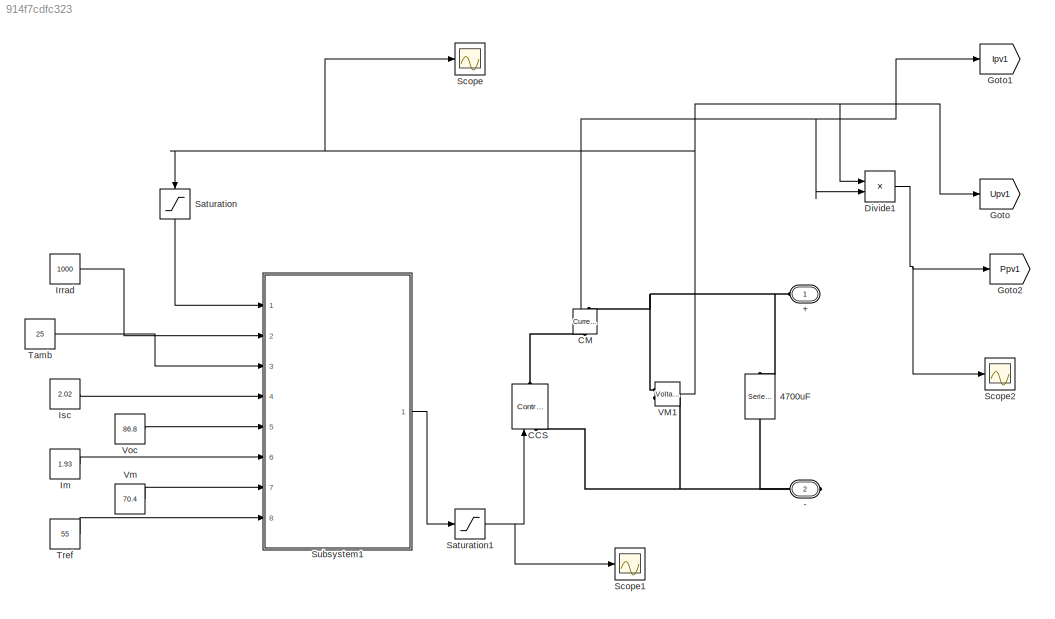
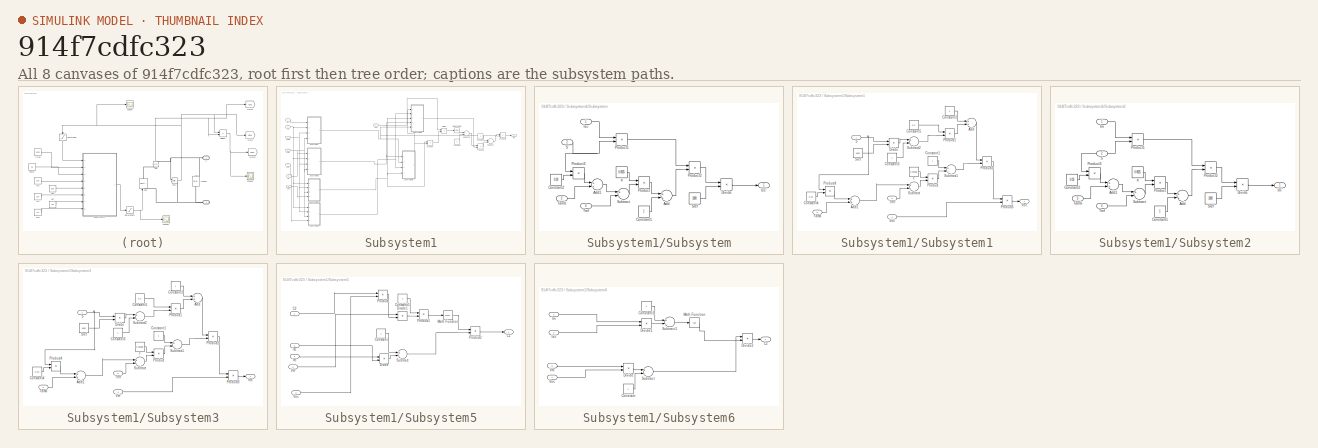
[diagram: thumbnail index - all 8 canvases of the model, root first then tree order]
MODEL slx_914f7cdfc323
KIND model
CONFIG AbsTol = auto
CONFIG FixedStep = auto
CONFIG MaxStep = auto
CONFIG MinStep = auto
CONFIG RelTol = 1e-3
CONFIG SampleTimeConstraint = Unconstrained
CONFIG Solver = ode45
CONFIG SolverMode = Auto
CONFIG SolverName = ode45
CONFIG StartTime = 0.0
CONFIG StopTime = 10.0
BLOCK [PMIOPort] +
  Port = 1
  Side = Left
  Tag = PMCPort
BLOCK [PMIOPort] -
  Port = 2
  Side = Right
  Tag = PMCPort
BLOCK [Reference] 4700uF  REF=powerlib/Elements/Series RLC Branch
  AttributesFormatString = \n
  BranchType = C
  Capacitance = 4700e-6
  Inductance = 5e-03
  InitialCurrent = 0
  InitialVoltage = 0
  LConnTagsString = __new0
  Measurements = None
  Ports = [0, 0, 0, 0, 0, 1, 1]
  RConnTagsString = __new0
  Resistance = 1
  SetiL0 = off
  Setx0 = off
  SourceBlock = powerlib/Elements/Series RLC Branch
  SourceType = Series RLC Branch
BLOCK [Reference] CCS  REF=powerlib/Electrical
Sources/Controlled Current Source
  Amplitude = 0
  Frequency = 0
  Initialize = on
  Measurements = None
  Phase = 0
  Ports = [1, 0, 0, 0, 0, 1, 1]
  SourceBlock = powerlib/Electrical\nSources/Controlled Current Source
  SourceType = Controlled Current Source
  Source_Type = AC
BLOCK [Reference] CM  REF=powerlib/Measurements/Current Measurement
  OutputType = Complex
  PSBequivalent = 0
  PhasorSimulation = off
  Ports = [0, 1, 0, 0, 0, 1, 1]
  SourceBlock = powerlib/Measurements/Current Measurement
  SourceType = Current Measurement
BLOCK [Product] Divide1
  InputSameDT = off
  Inputs = **
  OutDataTypeStr = Inherit: Inherit via internal rule
  Ports = [2, 1]
  RndMeth = Floor
  SaturateOnIntegerOverflow = off
BLOCK [Goto] Goto
  GotoTag = Upv1
  TagVisibility = global
BLOCK [Goto] Goto1
  GotoTag = Ipv1
  TagVisibility = global
BLOCK [Goto] Goto2
  GotoTag = Ppv1
  TagVisibility = global
BLOCK [Constant] Im
  Value = 1.93
BLOCK [Constant] Irrad 
  Value = 1000
BLOCK [Constant] Isc
  Value = 2.02
BLOCK [Saturate] Saturation
  InputPortMap = u0
  LowerLimit = 0
  Ports = [1, 1]
  UpperLimit = 100
BLOCK [Saturate] Saturation1
  InputPortMap = u0
  LowerLimit = 0
  Ports = [1, 1]
  UpperLimit = 4
BLOCK [Scope] Scope
  Floating = off
  NumInputPorts = 1
  Ports = [1]
BLOCK [Scope] Scope1
  Floating = off
  NumInputPorts = 1
  Ports = [1]
  SaveName = ScopeData1
BLOCK [Scope] Scope2
  Floating = off
  NumInputPorts = 1
  Ports = [1]
  SaveName = ScopeData2
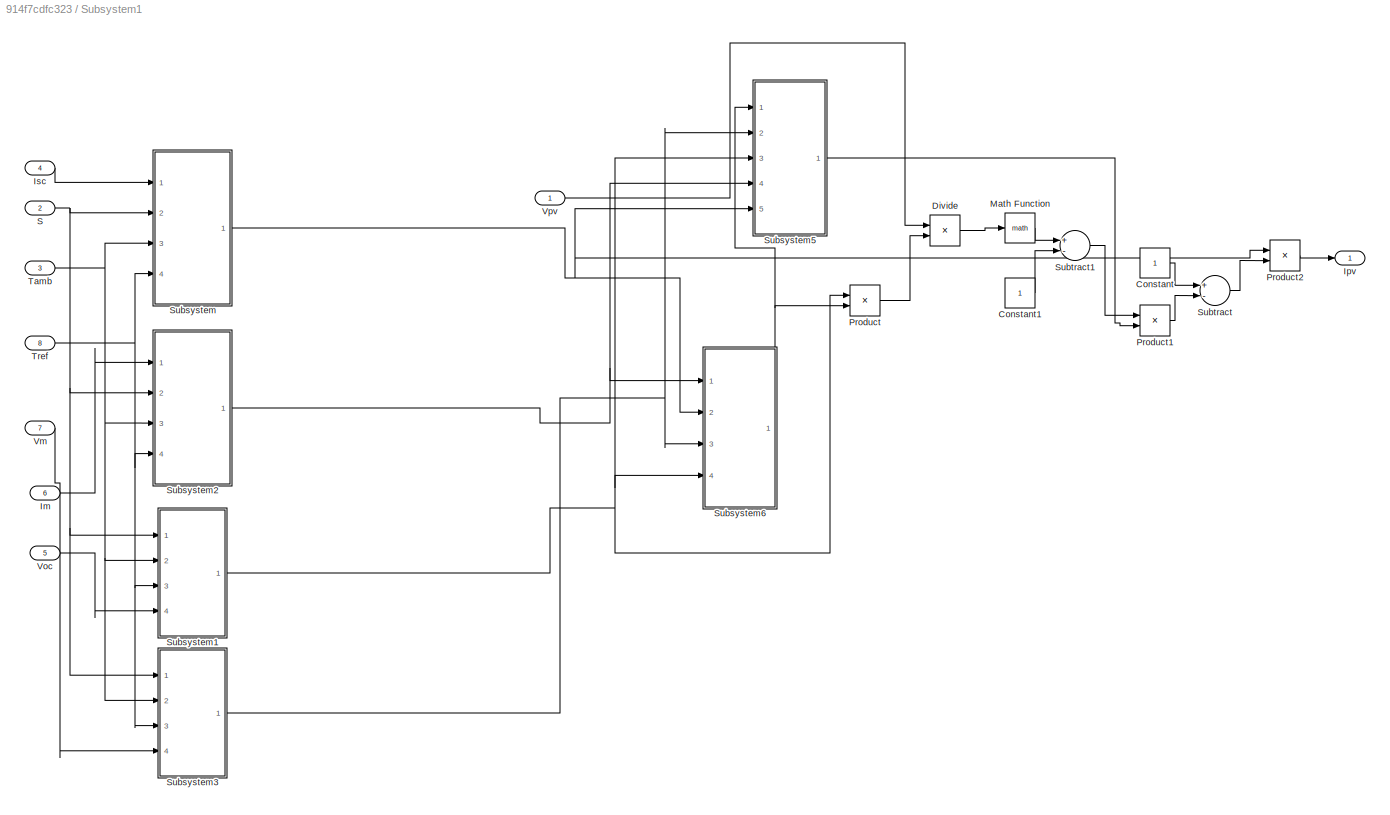
BLOCK [SubSystem] Subsystem1
  Ports = [8, 1]
  RequestExecContextInheritance = off
BLOCK [Constant] Subsystem1/Constant
BLOCK [Constant] Subsystem1/Constant1
BLOCK [Product] Subsystem1/Divide
  InputSameDT = off
  Inputs = */
  OutDataTypeStr = Inherit: Inherit via internal rule
  Ports = [2, 1]
  RndMeth = Floor
  SaturateOnIntegerOverflow = off
BLOCK [Inport] Subsystem1/Im
  IconDisplay = Port number
  Port = 6
BLOCK [Outport] Subsystem1/Ipv
  IconDisplay = Port number
BLOCK [Inport] Subsystem1/Isc
  IconDisplay = Port number
  Port = 4
BLOCK [Math] Subsystem1/Math Function
  Ports = [1, 1]
BLOCK [Product] Subsystem1/Product
  InputSameDT = off
  OutDataTypeStr = Inherit: Inherit via internal rule
  Ports = [2, 1]
  SaturateOnIntegerOverflow = off
BLOCK [Product] Subsystem1/Product1
  InputSameDT = off
  OutDataTypeStr = Inherit: Inherit via internal rule
  Ports = [2, 1]
  SaturateOnIntegerOverflow = off
BLOCK [Product] Subsystem1/Product2
  InputSameDT = off
  OutDataTypeStr = Inherit: Inherit via internal rule
  Ports = [2, 1]
  SaturateOnIntegerOverflow = off
BLOCK [Inport] Subsystem1/S
  IconDisplay = Port number
  Port = 2
BLOCK [SubSystem] Subsystem1/Subsystem
  Ports = [4, 1]
  RequestExecContextInheritance = off
BLOCK [Sum] Subsystem1/Subsystem/Add
  InputSameDT = off
  OutDataTypeStr = Inherit: Inherit via internal rule
  Ports = [2, 1]
  SaturateOnIntegerOverflow = off
BLOCK [Sum] Subsystem1/Subsystem/Add1
  InputSameDT = off
  OutDataTypeStr = Inherit: Inherit via internal rule
  Ports = [2, 1]
  SaturateOnIntegerOverflow = off
BLOCK [Constant] Subsystem1/Subsystem/Constant1
BLOCK [Constant] Subsystem1/Subsystem/Constant2
  Value = 0.03
BLOCK [Product] Subsystem1/Subsystem/Divide
  InputSameDT = off
  Inputs = */
  OutDataTypeStr = Inherit: Inherit via internal rule
  Ports = [2, 1]
  RndMeth = Floor
  SaturateOnIntegerOverflow = off
BLOCK [Inport] Subsystem1/Subsystem/Isc
  IconDisplay = Port number
BLOCK [Outport] Subsystem1/Subsystem/Isc'
  IconDisplay = Port number
BLOCK [Product] Subsystem1/Subsystem/Product
  InputSameDT = off
  OutDataTypeStr = Inherit: Inherit via internal rule
  Ports = [2, 1]
  SaturateOnIntegerOverflow = off
BLOCK [Product] Subsystem1/Subsystem/Product1
  InputSameDT = off
  OutDataTypeStr = Inherit: Inherit via internal rule
  Ports = [2, 1]
  SaturateOnIntegerOverflow = off
BLOCK [Product] Subsystem1/Subsystem/Product2
  InputSameDT = off
  OutDataTypeStr = Inherit: Inherit via internal rule
  Ports = [2, 1]
  SaturateOnIntegerOverflow = off
BLOCK [Product] Subsystem1/Subsystem/Product3
  InputSameDT = off
  OutDataTypeStr = Inherit: Inherit via internal rule
  Ports = [2, 1]
  SaturateOnIntegerOverflow = off
BLOCK [Inport] Subsystem1/Subsystem/S
  IconDisplay = Port number
  Port = 2
BLOCK [Constant] Subsystem1/Subsystem/Sref
  Value = 1000
BLOCK [Sum] Subsystem1/Subsystem/Subtract
  InputSameDT = off
  Inputs = +-
  OutDataTypeStr = Inherit: Inherit via internal rule
  Ports = [2, 1]
  SaturateOnIntegerOverflow = off
BLOCK [Inport] Subsystem1/Subsystem/Tamb
  IconDisplay = Port number
  Port = 3
BLOCK [Inport] Subsystem1/Subsystem/Tref
  IconDisplay = Port number
  Port = 4
BLOCK [Constant] Subsystem1/Subsystem/a
  Value = 0.0025
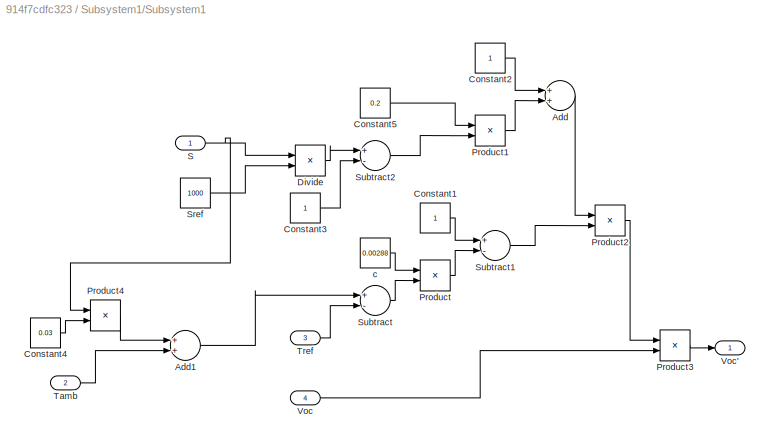
BLOCK [SubSystem] Subsystem1/Subsystem1
  Ports = [4, 1]
  RequestExecContextInheritance = off
BLOCK [Sum] Subsystem1/Subsystem1/Add
  InputSameDT = off
  OutDataTypeStr = Inherit: Inherit via internal rule
  Ports = [2, 1]
  SaturateOnIntegerOverflow = off
BLOCK [Sum] Subsystem1/Subsystem1/Add1
  InputSameDT = off
  OutDataTypeStr = Inherit: Inherit via internal rule
  Ports = [2, 1]
  SaturateOnIntegerOverflow = off
BLOCK [Constant] Subsystem1/Subsystem1/Constant1
BLOCK [Constant] Subsystem1/Subsystem1/Constant2
BLOCK [Constant] Subsystem1/Subsystem1/Constant3
BLOCK [Constant] Subsystem1/Subsystem1/Constant4
  Value = 0.03
BLOCK [Constant] Subsystem1/Subsystem1/Constant5
  Value = 0.2
BLOCK [Product] Subsystem1/Subsystem1/Divide
  InputSameDT = off
  Inputs = */
  OutDataTypeStr = Inherit: Inherit via internal rule
  Ports = [2, 1]
  RndMeth = Floor
  SaturateOnIntegerOverflow = off
BLOCK [Product] Subsystem1/Subsystem1/Product
  InputSameDT = off
  OutDataTypeStr = Inherit: Inherit via internal rule
  Ports = [2, 1]
  SaturateOnIntegerOverflow = off
BLOCK [Product] Subsystem1/Subsystem1/Product1
  InputSameDT = off
  OutDataTypeStr = Inherit: Inherit via internal rule
  Ports = [2, 1]
  SaturateOnIntegerOverflow = off
BLOCK [Product] Subsystem1/Subsystem1/Product2
  InputSameDT = off
  OutDataTypeStr = Inherit: Inherit via internal rule
  Ports = [2, 1]
  SaturateOnIntegerOverflow = off
BLOCK [Product] Subsystem1/Subsystem1/Product3
  InputSameDT = off
  OutDataTypeStr = Inherit: Inherit via internal rule
  Ports = [2, 1]
  SaturateOnIntegerOverflow = off
BLOCK [Product] Subsystem1/Subsystem1/Product4
  InputSameDT = off
  OutDataTypeStr = Inherit: Inherit via internal rule
  Ports = [2, 1]
  SaturateOnIntegerOverflow = off
BLOCK [Inport] Subsystem1/Subsystem1/S
  IconDisplay = Port number
BLOCK [Constant] Subsystem1/Subsystem1/Sref
  Value = 1000
BLOCK [Sum] Subsystem1/Subsystem1/Subtract
  InputSameDT = off
  Inputs = +-
  OutDataTypeStr = Inherit: Inherit via internal rule
  Ports = [2, 1]
  SaturateOnIntegerOverflow = off
BLOCK [Sum] Subsystem1/Subsystem1/Subtract1
  InputSameDT = off
  Inputs = +-
  OutDataTypeStr = Inherit: Inherit via internal rule
  Ports = [2, 1]
  SaturateOnIntegerOverflow = off
BLOCK [Sum] Subsystem1/Subsystem1/Subtract2
  InputSameDT = off
  Inputs = +-
  OutDataTypeStr = Inherit: Inherit via internal rule
  Ports = [2, 1]
  SaturateOnIntegerOverflow = off
BLOCK [Inport] Subsystem1/Subsystem1/Tamb
  IconDisplay = Port number
  Port = 2
BLOCK [Inport] Subsystem1/Subsystem1/Tref
  IconDisplay = Port number
  Port = 3
BLOCK [Inport] Subsystem1/Subsystem1/Voc
  IconDisplay = Port number
  Port = 4
BLOCK [Outport] Subsystem1/Subsystem1/Voc'
  IconDisplay = Port number
BLOCK [Constant] Subsystem1/Subsystem1/c
  Value = 0.00288
BLOCK [SubSystem] Subsystem1/Subsystem2
  Ports = [4, 1]
  RequestExecContextInheritance = off
BLOCK [Sum] Subsystem1/Subsystem2/Add
  InputSameDT = off
  OutDataTypeStr = Inherit: Inherit via internal rule
  Ports = [2, 1]
  SaturateOnIntegerOverflow = off
BLOCK [Sum] Subsystem1/Subsystem2/Add1
  InputSameDT = off
  OutDataTypeStr = Inherit: Inherit via internal rule
  Ports = [2, 1]
  SaturateOnIntegerOverflow = off
BLOCK [Constant] Subsystem1/Subsystem2/Constant1
BLOCK [Constant] Subsystem1/Subsystem2/Constant2
  Value = 0.03
BLOCK [Product] Subsystem1/Subsystem2/Divide
  InputSameDT = off
  Inputs = */
  OutDataTypeStr = Inherit: Inherit via internal rule
  Ports = [2, 1]
  RndMeth = Floor
  SaturateOnIntegerOverflow = off
BLOCK [Inport] Subsystem1/Subsystem2/Im
  IconDisplay = Port number
BLOCK [Outport] Subsystem1/Subsystem2/Im'
  IconDisplay = Port number
BLOCK [Product] Subsystem1/Subsystem2/Product
  InputSameDT = off
  OutDataTypeStr = Inherit: Inherit via internal rule
  Ports = [2, 1]
  SaturateOnIntegerOverflow = off
BLOCK [Product] Subsystem1/Subsystem2/Product1
  InputSameDT = off
  OutDataTypeStr = Inherit: Inherit via internal rule
  Ports = [2, 1]
  SaturateOnIntegerOverflow = off
BLOCK [Product] Subsystem1/Subsystem2/Product2
  InputSameDT = off
  OutDataTypeStr = Inherit: Inherit via internal rule
  Ports = [2, 1]
  SaturateOnIntegerOverflow = off
BLOCK [Product] Subsystem1/Subsystem2/Product3
  InputSameDT = off
  OutDataTypeStr = Inherit: Inherit via internal rule
  Ports = [2, 1]
  SaturateOnIntegerOverflow = off
BLOCK [Inport] Subsystem1/Subsystem2/S
  IconDisplay = Port number
  Port = 2
BLOCK [Constant] Subsystem1/Subsystem2/Sref
  Value = 1000
BLOCK [Sum] Subsystem1/Subsystem2/Subtract
  InputSameDT = off
  Inputs = +-
  OutDataTypeStr = Inherit: Inherit via internal rule
  Ports = [2, 1]
  SaturateOnIntegerOverflow = off
BLOCK [Inport] Subsystem1/Subsystem2/Tamb
  IconDisplay = Port number
  Port = 3
BLOCK [Inport] Subsystem1/Subsystem2/Tref
  IconDisplay = Port number
  Port = 4
BLOCK [Constant] Subsystem1/Subsystem2/a
  Value = 0.0025
BLOCK [SubSystem] Subsystem1/Subsystem3
  Ports = [4, 1]
  RequestExecContextInheritance = off
BLOCK [Sum] Subsystem1/Subsystem3/Add
  InputSameDT = off
  OutDataTypeStr = Inherit: Inherit via internal rule
  Ports = [2, 1]
  SaturateOnIntegerOverflow = off
BLOCK [Sum] Subsystem1/Subsystem3/Add1
  InputSameDT = off
  OutDataTypeStr = Inherit: Inherit via internal rule
  Ports = [2, 1]
  SaturateOnIntegerOverflow = off
BLOCK [Constant] Subsystem1/Subsystem3/Constant1
BLOCK [Constant] Subsystem1/Subsystem3/Constant2
BLOCK [Constant] Subsystem1/Subsystem3/Constant3
BLOCK [Constant] Subsystem1/Subsystem3/Constant4
  Value = 0.03
BLOCK [Constant] Subsystem1/Subsystem3/Constant5
  Value = 0.2
BLOCK [Product] Subsystem1/Subsystem3/Divide
  InputSameDT = off
  Inputs = */
  OutDataTypeStr = Inherit: Inherit via internal rule
  Ports = [2, 1]
  RndMeth = Floor
  SaturateOnIntegerOverflow = off
BLOCK [Product] Subsystem1/Subsystem3/Product
  InputSameDT = off
  OutDataTypeStr = Inherit: Inherit via internal rule
  Ports = [2, 1]
  SaturateOnIntegerOverflow = off
BLOCK [Product] Subsystem1/Subsystem3/Product1
  InputSameDT = off
  OutDataTypeStr = Inherit: Inherit via internal rule
  Ports = [2, 1]
  SaturateOnIntegerOverflow = off
BLOCK [Product] Subsystem1/Subsystem3/Product2
  InputSameDT = off
  OutDataTypeStr = Inherit: Inherit via internal rule
  Ports = [2, 1]
  SaturateOnIntegerOverflow = off
BLOCK [Product] Subsystem1/Subsystem3/Product3
  InputSameDT = off
  OutDataTypeStr = Inherit: Inherit via internal rule
  Ports = [2, 1]
  SaturateOnIntegerOverflow = off
BLOCK [Product] Subsystem1/Subsystem3/Product4
  InputSameDT = off
  OutDataTypeStr = Inherit: Inherit via internal rule
  Ports = [2, 1]
  SaturateOnIntegerOverflow = off
BLOCK [Inport] Subsystem1/Subsystem3/S
  IconDisplay = Port number
BLOCK [Constant] Subsystem1/Subsystem3/Sref
  Value = 1000
BLOCK [Sum] Subsystem1/Subsystem3/Subtract
  InputSameDT = off
  Inputs = +-
  OutDataTypeStr = Inherit: Inherit via internal rule
  Ports = [2, 1]
  SaturateOnIntegerOverflow = off
BLOCK [Sum] Subsystem1/Subsystem3/Subtract1
  InputSameDT = off
  Inputs = +-
  OutDataTypeStr = Inherit: Inherit via internal rule
  Ports = [2, 1]
  SaturateOnIntegerOverflow = off
BLOCK [Sum] Subsystem1/Subsystem3/Subtract2
  InputSameDT = off
  Inputs = +-
  OutDataTypeStr = Inherit: Inherit via internal rule
  Ports = [2, 1]
  SaturateOnIntegerOverflow = off
BLOCK [Inport] Subsystem1/Subsystem3/Tamb
  IconDisplay = Port number
  Port = 2
BLOCK [Inport] Subsystem1/Subsystem3/Tref
  IconDisplay = Port number
  Port = 3
BLOCK [Inport] Subsystem1/Subsystem3/Vm
  IconDisplay = Port number
  Port = 4
BLOCK [Outport] Subsystem1/Subsystem3/Vm'
  IconDisplay = Port number
BLOCK [Constant] Subsystem1/Subsystem3/c
  Value = 0.00288
BLOCK [SubSystem] Subsystem1/Subsystem5
  Ports = [5, 1]
  RequestExecContextInheritance = off
BLOCK [Outport] Subsystem1/Subsystem5/C1
  IconDisplay = Port number
BLOCK [Inport] Subsystem1/Subsystem5/C2
  IconDisplay = Port number
BLOCK [Constant] Subsystem1/Subsystem5/Constant
BLOCK [Constant] Subsystem1/Subsystem5/Constant1
  Value = -1
BLOCK [Product] Subsystem1/Subsystem5/Divide
  InputSameDT = off
  Inputs = */
  OutDataTypeStr = Inherit: Inherit via internal rule
  Ports = [2, 1]
  RndMeth = Floor
  SaturateOnIntegerOverflow = off
BLOCK [Product] Subsystem1/Subsystem5/Divide1
  InputSameDT = off
  Inputs = */
  OutDataTypeStr = Inherit: Inherit via internal rule
  Ports = [2, 1]
  RndMeth = Floor
  SaturateOnIntegerOverflow = off
BLOCK [Inport] Subsystem1/Subsystem5/Im
  IconDisplay = Port number
  Port = 4
BLOCK [Inport] Subsystem1/Subsystem5/Isc
  IconDisplay = Port number
  Port = 5
BLOCK [Math] Subsystem1/Subsystem5/Math Function
  Ports = [1, 1]
BLOCK [Product] Subsystem1/Subsystem5/Product
  InputSameDT = off
  OutDataTypeStr = Inherit: Inherit via internal rule
  Ports = [2, 1]
  SaturateOnIntegerOverflow = off
BLOCK [Product] Subsystem1/Subsystem5/Product1
  InputSameDT = off
  OutDataTypeStr = Inherit: Inherit via internal rule
  Ports = [2, 1]
  SaturateOnIntegerOverflow = off
BLOCK [Product] Subsystem1/Subsystem5/Product2
  InputSameDT = off
  OutDataTypeStr = Inherit: Inherit via internal rule
  Ports = [2, 1]
  SaturateOnIntegerOverflow = off
BLOCK [Sum] Subsystem1/Subsystem5/Subtract
  InputSameDT = off
  Inputs = +-
  OutDataTypeStr = Inherit: Inherit via internal rule
  Ports = [2, 1]
  SaturateOnIntegerOverflow = off
BLOCK [Inport] Subsystem1/Subsystem5/Vm
  IconDisplay = Port number
  Port = 2
BLOCK [Inport] Subsystem1/Subsystem5/Voc
  IconDisplay = Port number
  Port = 3
BLOCK [SubSystem] Subsystem1/Subsystem6
  Ports = [4, 1]
  RequestExecContextInheritance = off
BLOCK [Outport] Subsystem1/Subsystem6/C2
  IconDisplay = Port number
BLOCK [Constant] Subsystem1/Subsystem6/Constant
BLOCK [Constant] Subsystem1/Subsystem6/Constant1
BLOCK [Product] Subsystem1/Subsystem6/Divide
  InputSameDT = off
  Inputs = */
  OutDataTypeStr = Inherit: Inherit via internal rule
  Ports = [2, 1]
  RndMeth = Floor
  SaturateOnIntegerOverflow = off
BLOCK [Product] Subsystem1/Subsystem6/Divide1
  InputSameDT = off
  Inputs = */
  OutDataTypeStr = Inherit: Inherit via internal rule
  Ports = [2, 1]
  RndMeth = Floor
  SaturateOnIntegerOverflow = off
BLOCK [Product] Subsystem1/Subsystem6/Divide2
  InputSameDT = off
  Inputs = */
  OutDataTypeStr = Inherit: Inherit via internal rule
  Ports = [2, 1]
  RndMeth = Floor
  SaturateOnIntegerOverflow = off
BLOCK [Inport] Subsystem1/Subsystem6/Im
  IconDisplay = Port number
BLOCK [Inport] Subsystem1/Subsystem6/Isc
  IconDisplay = Port number
  Port = 2
BLOCK [Math] Subsystem1/Subsystem6/Math Function
  Operator = log
  Ports = [1, 1]
BLOCK [Sum] Subsystem1/Subsystem6/Subtract
  InputSameDT = off
  Inputs = +-
  OutDataTypeStr = Inherit: Inherit via internal rule
  Ports = [2, 1]
  SaturateOnIntegerOverflow = off
BLOCK [Sum] Subsystem1/Subsystem6/Subtract1
  InputSameDT = off
  Inputs = +-
  OutDataTypeStr = Inherit: Inherit via internal rule
  Ports = [2, 1]
  SaturateOnIntegerOverflow = off
BLOCK [Inport] Subsystem1/Subsystem6/Vm
  IconDisplay = Port number
  Port = 3
BLOCK [Inport] Subsystem1/Subsystem6/Voc
  IconDisplay = Port number
  Port = 4
BLOCK [Sum] Subsystem1/Subtract
  InputSameDT = off
  Inputs = +-
  OutDataTypeStr = Inherit: Inherit via internal rule
  Ports = [2, 1]
  SaturateOnIntegerOverflow = off
BLOCK [Sum] Subsystem1/Subtract1
  InputSameDT = off
  Inputs = +-
  OutDataTypeStr = Inherit: Inherit via internal rule
  Ports = [2, 1]
  SaturateOnIntegerOverflow = off
BLOCK [Inport] Subsystem1/Tamb
  IconDisplay = Port number
  Port = 3
BLOCK [Inport] Subsystem1/Tref
  IconDisplay = Port number
  Port = 8
BLOCK [Inport] Subsystem1/Vm
  IconDisplay = Port number
  Port = 7
BLOCK [Inport] Subsystem1/Voc
  IconDisplay = Port number
  Port = 5
BLOCK [Inport] Subsystem1/Vpv
  IconDisplay = Port number
BLOCK [Constant] Tamb 
  Value = 25
BLOCK [Constant] Tref
  Value = 55
BLOCK [Reference] VM1  REF=powerlib/Measurements/Voltage Measurement
  OutputType = Complex
  PSBequivalent = 0
  PhasorSimulation = off
  Ports = [0, 1, 0, 0, 0, 2]
  SourceBlock = powerlib/Measurements/Voltage Measurement
  SourceType = Voltage Measurement
BLOCK [Constant] Vm
  Value = 70.4
BLOCK [Constant] Voc
  Value = 86.8
NET CM:1 -> Divide1:2, Goto1:1
NET Divide1:1 -> Goto2:1, Scope2:1
LINE Im:1 -> Subsystem1:6
LINE Irrad :1 -> Subsystem1:2
LINE Isc:1 -> Subsystem1:4
NET Saturation1:1 -> CCS:1, Scope1:1
LINE Saturation:1 -> Subsystem1:1
LINE Subsystem1/Constant1:1 -> Subsystem1/Subtract1:2
LINE Subsystem1/Constant:1 -> Subsystem1/Subtract:1
LINE Subsystem1/Divide:1 -> Subsystem1/Math Function:1
LINE Subsystem1/Im:1 -> Subsystem1/Subsystem2:1
LINE Subsystem1/Isc:1 -> Subsystem1/Subsystem:1
LINE Subsystem1/Math Function:1 -> Subsystem1/Subtract1:1
LINE Subsystem1/Product1:1 -> Subsystem1/Subtract:2
LINE Subsystem1/Product2:1 -> Subsystem1/Ipv:1
LINE Subsystem1/Product:1 -> Subsystem1/Divide:2
NET Subsystem1/S:1 -> Subsystem1/Subsystem1:1, Subsystem1/Subsystem2:2, Subsystem1/Subsystem3:1, Subsystem1/Subsystem:2
LINE Subsystem1/Subsystem/Add1:1 -> Subsystem1/Subsystem/Subtract:1
LINE Subsystem1/Subsystem/Add:1 -> Subsystem1/Subsystem/Product2:2
LINE Subsystem1/Subsystem/Constant1:1 -> Subsystem1/Subsystem/Add:2
LINE Subsystem1/Subsystem/Constant2:1 -> Subsystem1/Subsystem/Product3:2
LINE Subsystem1/Subsystem/Divide:1 -> Subsystem1/Subsystem/Isc':1
LINE Subsystem1/Subsystem/Isc:1 -> Subsystem1/Subsystem/Product1:1
LINE Subsystem1/Subsystem/Product1:1 -> Subsystem1/Subsystem/Product2:1
LINE Subsystem1/Subsystem/Product2:1 -> Subsystem1/Subsystem/Divide:1
LINE Subsystem1/Subsystem/Product3:1 -> Subsystem1/Subsystem/Add1:1
LINE Subsystem1/Subsystem/Product:1 -> Subsystem1/Subsystem/Add:1
NET Subsystem1/Subsystem/S:1 -> Subsystem1/Subsystem/Product1:2, Subsystem1/Subsystem/Product3:1
LINE Subsystem1/Subsystem/Sref:1 -> Subsystem1/Subsystem/Divide:2
LINE Subsystem1/Subsystem/Subtract:1 -> Subsystem1/Subsystem/Product:2
LINE Subsystem1/Subsystem/Tamb:1 -> Subsystem1/Subsystem/Add1:2
LINE Subsystem1/Subsystem/Tref:1 -> Subsystem1/Subsystem/Subtract:2
LINE Subsystem1/Subsystem/a:1 -> Subsystem1/Subsystem/Product:1
LINE Subsystem1/Subsystem1/Add1:1 -> Subsystem1/Subsystem1/Subtract:1
LINE Subsystem1/Subsystem1/Add:1 -> Subsystem1/Subsystem1/Product2:1
LINE Subsystem1/Subsystem1/Constant1:1 -> Subsystem1/Subsystem1/Subtract1:1
LINE Subsystem1/Subsystem1/Constant2:1 -> Subsystem1/Subsystem1/Add:1
LINE Subsystem1/Subsystem1/Constant3:1 -> Subsystem1/Subsystem1/Subtract2:2
LINE Subsystem1/Subsystem1/Constant4:1 -> Subsystem1/Subsystem1/Product4:2
LINE Subsystem1/Subsystem1/Constant5:1 -> Subsystem1/Subsystem1/Product1:1
LINE Subsystem1/Subsystem1/Divide:1 -> Subsystem1/Subsystem1/Subtract2:1
LINE Subsystem1/Subsystem1/Product1:1 -> Subsystem1/Subsystem1/Add:2
LINE Subsystem1/Subsystem1/Product2:1 -> Subsystem1/Subsystem1/Product3:1
LINE Subsystem1/Subsystem1/Product3:1 -> Subsystem1/Subsystem1/Voc':1
LINE Subsystem1/Subsystem1/Product4:1 -> Subsystem1/Subsystem1/Add1:1
LINE Subsystem1/Subsystem1/Product:1 -> Subsystem1/Subsystem1/Subtract1:2
NET Subsystem1/Subsystem1/S:1 -> Subsystem1/Subsystem1/Divide:1, Subsystem1/Subsystem1/Product4:1
LINE Subsystem1/Subsystem1/Sref:1 -> Subsystem1/Subsystem1/Divide:2
LINE Subsystem1/Subsystem1/Subtract1:1 -> Subsystem1/Subsystem1/Product2:2
LINE Subsystem1/Subsystem1/Subtract2:1 -> Subsystem1/Subsystem1/Product1:2
LINE Subsystem1/Subsystem1/Subtract:1 -> Subsystem1/Subsystem1/Product:2
LINE Subsystem1/Subsystem1/Tamb:1 -> Subsystem1/Subsystem1/Add1:2
LINE Subsystem1/Subsystem1/Tref:1 -> Subsystem1/Subsystem1/Subtract:2
LINE Subsystem1/Subsystem1/Voc:1 -> Subsystem1/Subsystem1/Product3:2
LINE Subsystem1/Subsystem1/c:1 -> Subsystem1/Subsystem1/Product:1
NET Subsystem1/Subsystem1:1 -> Subsystem1/Product:1, Subsystem1/Subsystem5:3, Subsystem1/Subsystem6:4
LINE Subsystem1/Subsystem2/Add1:1 -> Subsystem1/Subsystem2/Subtract:1
LINE Subsystem1/Subsystem2/Add:1 -> Subsystem1/Subsystem2/Product2:2
LINE Subsystem1/Subsystem2/Constant1:1 -> Subsystem1/Subsystem2/Add:2
LINE Subsystem1/Subsystem2/Constant2:1 -> Subsystem1/Subsystem2/Product3:2
LINE Subsystem1/Subsystem2/Divide:1 -> Subsystem1/Subsystem2/Im':1
LINE Subsystem1/Subsystem2/Im:1 -> Subsystem1/Subsystem2/Product1:1
LINE Subsystem1/Subsystem2/Product1:1 -> Subsystem1/Subsystem2/Product2:1
LINE Subsystem1/Subsystem2/Product2:1 -> Subsystem1/Subsystem2/Divide:1
LINE Subsystem1/Subsystem2/Product3:1 -> Subsystem1/Subsystem2/Add1:1
LINE Subsystem1/Subsystem2/Product:1 -> Subsystem1/Subsystem2/Add:1
NET Subsystem1/Subsystem2/S:1 -> Subsystem1/Subsystem2/Product1:2, Subsystem1/Subsystem2/Product3:1
LINE Subsystem1/Subsystem2/Sref:1 -> Subsystem1/Subsystem2/Divide:2
LINE Subsystem1/Subsystem2/Subtract:1 -> Subsystem1/Subsystem2/Product:2
LINE Subsystem1/Subsystem2/Tamb:1 -> Subsystem1/Subsystem2/Add1:2
LINE Subsystem1/Subsystem2/Tref:1 -> Subsystem1/Subsystem2/Subtract:2
LINE Subsystem1/Subsystem2/a:1 -> Subsystem1/Subsystem2/Product:1
NET Subsystem1/Subsystem2:1 -> Subsystem1/Subsystem5:4, Subsystem1/Subsystem6:1
LINE Subsystem1/Subsystem3/Add1:1 -> Subsystem1/Subsystem3/Subtract:1
LINE Subsystem1/Subsystem3/Add:1 -> Subsystem1/Subsystem3/Product2:1
LINE Subsystem1/Subsystem3/Constant1:1 -> Subsystem1/Subsystem3/Subtract1:1
LINE Subsystem1/Subsystem3/Constant2:1 -> Subsystem1/Subsystem3/Add:1
LINE Subsystem1/Subsystem3/Constant3:1 -> Subsystem1/Subsystem3/Subtract2:2
LINE Subsystem1/Subsystem3/Constant4:1 -> Subsystem1/Subsystem3/Product4:2
LINE Subsystem1/Subsystem3/Constant5:1 -> Subsystem1/Subsystem3/Product1:1
LINE Subsystem1/Subsystem3/Divide:1 -> Subsystem1/Subsystem3/Subtract2:1
LINE Subsystem1/Subsystem3/Product1:1 -> Subsystem1/Subsystem3/Add:2
LINE Subsystem1/Subsystem3/Product2:1 -> Subsystem1/Subsystem3/Product3:1
LINE Subsystem1/Subsystem3/Product3:1 -> Subsystem1/Subsystem3/Vm':1
LINE Subsystem1/Subsystem3/Product4:1 -> Subsystem1/Subsystem3/Add1:1
LINE Subsystem1/Subsystem3/Product:1 -> Subsystem1/Subsystem3/Subtract1:2
NET Subsystem1/Subsystem3/S:1 -> Subsystem1/Subsystem3/Divide:1, Subsystem1/Subsystem3/Product4:1
LINE Subsystem1/Subsystem3/Sref:1 -> Subsystem1/Subsystem3/Divide:2
LINE Subsystem1/Subsystem3/Subtract1:1 -> Subsystem1/Subsystem3/Product2:2
LINE Subsystem1/Subsystem3/Subtract2:1 -> Subsystem1/Subsystem3/Product1:2
LINE Subsystem1/Subsystem3/Subtract:1 -> Subsystem1/Subsystem3/Product:2
LINE Subsystem1/Subsystem3/Tamb:1 -> Subsystem1/Subsystem3/Add1:2
LINE Subsystem1/Subsystem3/Tref:1 -> Subsystem1/Subsystem3/Subtract:2
LINE Subsystem1/Subsystem3/Vm:1 -> Subsystem1/Subsystem3/Product3:2
LINE Subsystem1/Subsystem3/c:1 -> Subsystem1/Subsystem3/Product:1
NET Subsystem1/Subsystem3:1 -> Subsystem1/Subsystem5:2, Subsystem1/Subsystem6:3
LINE Subsystem1/Subsystem5/C2:1 -> Subsystem1/Subsystem5/Product:1
LINE Subsystem1/Subsystem5/Constant1:1 -> Subsystem1/Subsystem5/Product1:1
LINE Subsystem1/Subsystem5/Constant:1 -> Subsystem1/Subsystem5/Subtract:1
LINE Subsystem1/Subsystem5/Divide1:1 -> Subsystem1/Subsystem5/Product1:2
LINE Subsystem1/Subsystem5/Divide:1 -> Subsystem1/Subsystem5/Subtract:2
LINE Subsystem1/Subsystem5/Im:1 -> Subsystem1/Subsystem5/Divide:1
LINE Subsystem1/Subsystem5/Isc:1 -> Subsystem1/Subsystem5/Divide:2
LINE Subsystem1/Subsystem5/Math Function:1 -> Subsystem1/Subsystem5/Product2:1
LINE Subsystem1/Subsystem5/Product1:1 -> Subsystem1/Subsystem5/Math Function:1
LINE Subsystem1/Subsystem5/Product2:1 -> Subsystem1/Subsystem5/C1:1
LINE Subsystem1/Subsystem5/Product:1 -> Subsystem1/Subsystem5/Divide1:2
LINE Subsystem1/Subsystem5/Subtract:1 -> Subsystem1/Subsystem5/Product2:2
LINE Subsystem1/Subsystem5/Vm:1 -> Subsystem1/Subsystem5/Divide1:1
LINE Subsystem1/Subsystem5/Voc:1 -> Subsystem1/Subsystem5/Product:2
LINE Subsystem1/Subsystem5:1 -> Subsystem1/Product1:2
LINE Subsystem1/Subsystem6/Constant1:1 -> Subsystem1/Subsystem6/Subtract1:1
LINE Subsystem1/Subsystem6/Constant:1 -> Subsystem1/Subsystem6/Subtract:2
LINE Subsystem1/Subsystem6/Divide1:1 -> Subsystem1/Subsystem6/Subtract1:2
LINE Subsystem1/Subsystem6/Divide2:1 -> Subsystem1/Subsystem6/C2:1
LINE Subsystem1/Subsystem6/Divide:1 -> Subsystem1/Subsystem6/Subtract:1
LINE Subsystem1/Subsystem6/Im:1 -> Subsystem1/Subsystem6/Divide1:1
LINE Subsystem1/Subsystem6/Isc:1 -> Subsystem1/Subsystem6/Divide1:2
LINE Subsystem1/Subsystem6/Math Function:1 -> Subsystem1/Subsystem6/Divide2:2
LINE Subsystem1/Subsystem6/Subtract1:1 -> Subsystem1/Subsystem6/Math Function:1
LINE Subsystem1/Subsystem6/Subtract:1 -> Subsystem1/Subsystem6/Divide2:1
LINE Subsystem1/Subsystem6/Vm:1 -> Subsystem1/Subsystem6/Divide:1
LINE Subsystem1/Subsystem6/Voc:1 -> Subsystem1/Subsystem6/Divide:2
NET Subsystem1/Subsystem6:1 -> Subsystem1/Product:2, Subsystem1/Subsystem5:1
NET Subsystem1/Subsystem:1 -> Subsystem1/Product2:1, Subsystem1/Subsystem5:5, Subsystem1/Subsystem6:2
LINE Subsystem1/Subtract1:1 -> Subsystem1/Product1:1
LINE Subsystem1/Subtract:1 -> Subsystem1/Product2:2
NET Subsystem1/Tamb:1 -> Subsystem1/Subsystem1:2, Subsystem1/Subsystem2:3, Subsystem1/Subsystem3:2, Subsystem1/Subsystem:3
NET Subsystem1/Tref:1 -> Subsystem1/Subsystem1:3, Subsystem1/Subsystem2:4, Subsystem1/Subsystem3:3, Subsystem1/Subsystem:4
LINE Subsystem1/Vm:1 -> Subsystem1/Subsystem3:4
LINE Subsystem1/Voc:1 -> Subsystem1/Subsystem1:4
LINE Subsystem1/Vpv:1 -> Subsystem1/Divide:1
LINE Subsystem1:1 -> Saturation1:1
LINE Tamb :1 -> Subsystem1:3
LINE Tref:1 -> Subsystem1:8
NET VM1:1 -> Divide1:1, Goto:1, Saturation:1, Scope:1
LINE Vm:1 -> Subsystem1:7
LINE Voc:1 -> Subsystem1:5
PNET net1: +:RConn1 -- 4700uF:LConn1 -- CM:RConn1 -- VM1:LConn1
PNET net2: -:RConn1 -- 4700uF:RConn1 -- CCS:LConn1 -- VM1:LConn2
PLINE CCS:RConn1 -- CM:LConn1
note: NET lines group one-source signal fan-out (src -> all destinations, sorted); 1:1 wires keep LINE; PNET lines group multi-terminal physical nets as a canonical sorted terminal list (undirected conserving connections); 2-terminal nets keep the pairwise PLINE form
